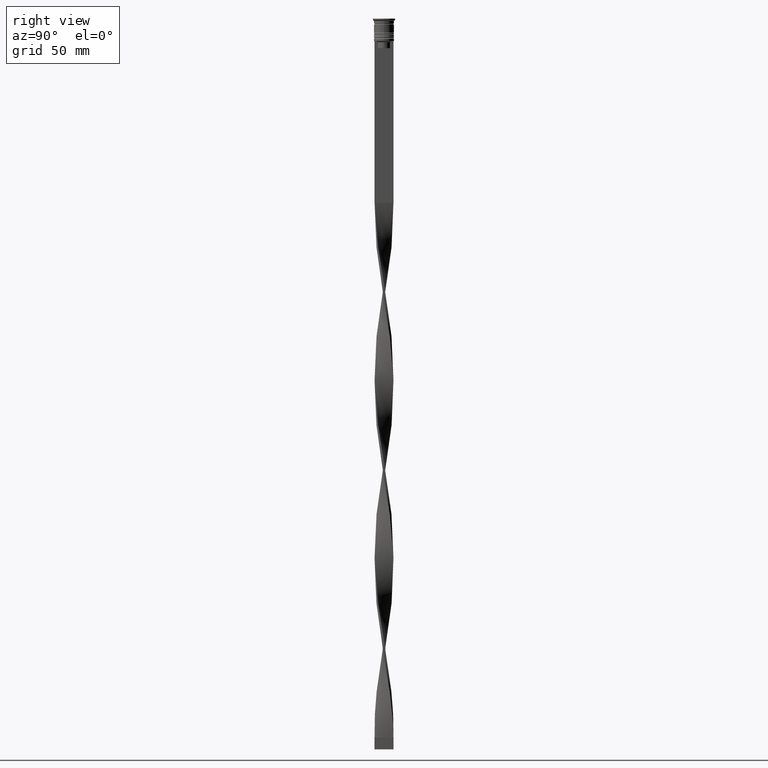
[diagram: clean part render]
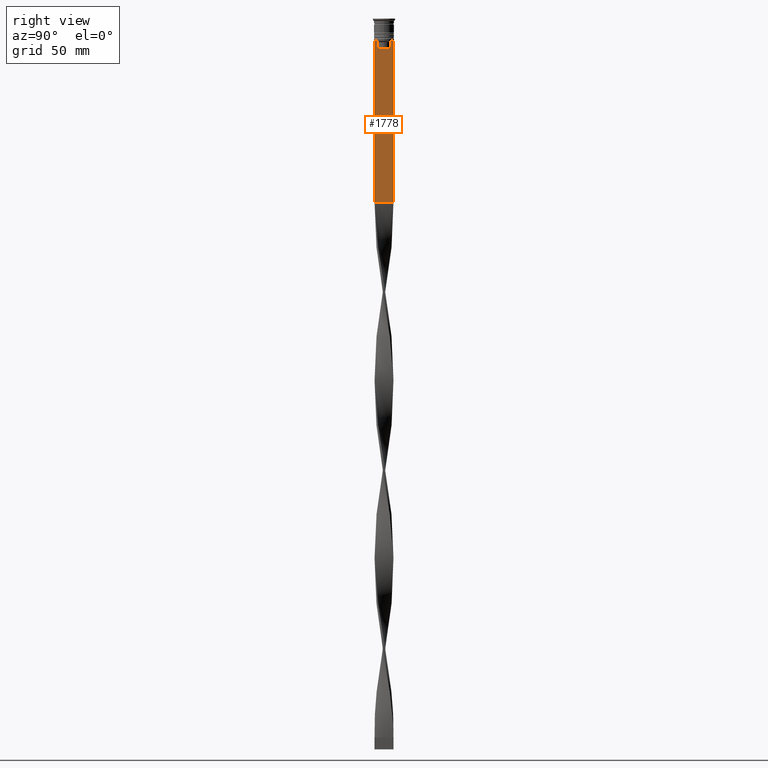
[diagram: same view with one face highlighted and labeled with its STEP entity id]
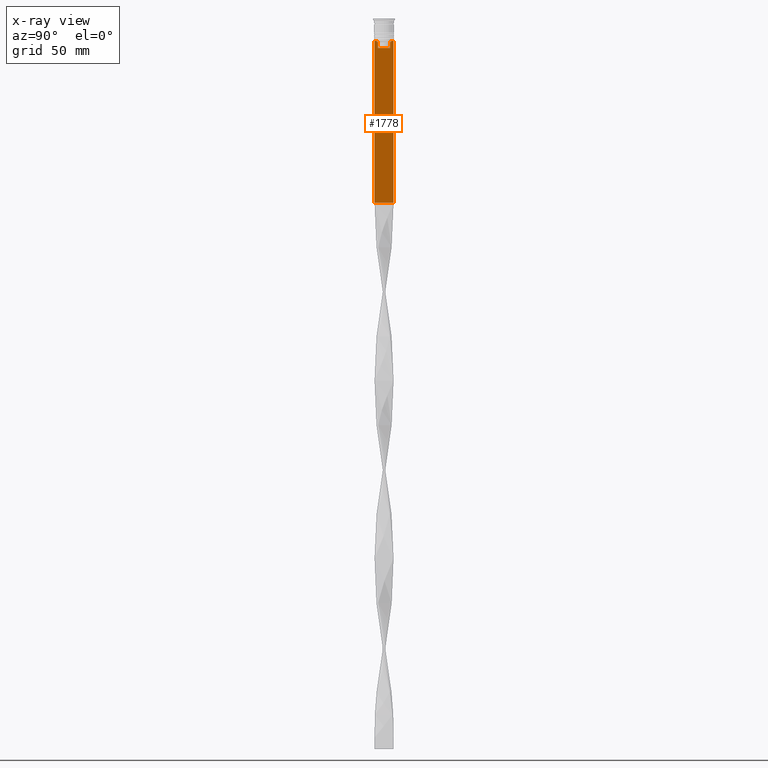
[diagram: x-ray of the same camera — body ghosted, the highlighted face saturated]
A machine part, right view. The second image highlights one B-rep face of the part: STEP entity #1778.
The next image is the same camera in x-ray: the body ghosted, the highlighted face saturated — about 0% of this face is hidden behind the body in this view.
In plain terms, the highlighted planar face has unit normal (-1, 0, 0).
Its self-contained STEP definition (entity closure, byte-faithful):
#62 = DIRECTION ( 'NONE',  ( 0.000000000000000000, 1.000000000000000000, 0.000000000000000000 ) ) ;
#70 = VECTOR ( 'NONE', #226, 1000.000000000000000 ) ;
#147 = LINE ( 'NONE', #999, #389 ) ;
#221 = EDGE_CURVE ( 'NONE', #3494, #2777, #305, .T. ) ;
#226 = DIRECTION ( 'NONE',  ( 0.000000000000000000, 0.000000000000000000, -1.000000000000000000 ) ) ;
#305 = LINE ( 'NONE', #2457, #70 ) ;
#376 = CARTESIAN_POINT ( 'NONE',  ( 0.5000000000000000000, -2.771864055700302032, -9.833582414266679450 ) ) ;
#380 = LINE ( 'NONE', #1373, #3944 ) ;
#389 = VECTOR ( 'NONE', #1311, 1000.000000000000000 ) ;
#429 = LINE ( 'NONE', #1959, #3219 ) ;
#440 = CARTESIAN_POINT ( 'NONE',  ( 0.5000000000000000000, 2.941047749529105193, -9.666873766989334982 ) ) ;
#597 = CARTESIAN_POINT ( 'NONE',  ( 0.5000000000000000000, -4.000000000000000000, -1.437742251701450202 ) ) ;
#608 = DIRECTION ( 'NONE',  ( -0.000000000000000000, -0.000000000000000000, 1.000000000000000000 ) ) ;
#618 = DIRECTION ( 'NONE',  ( 0.000000000000000000, 0.000000000000000000, 1.000000000000000000 ) ) ;
#936 = B_SPLINE_CURVE_WITH_KNOTS ( 'NONE', 3,
 ( #3139, #376, #1056, #2285 ),
 .UNSPECIFIED., .F., .F.,
 ( 4, 4 ),
 ( 0.01295151922336847811, 0.01367164596165162602 ),
 .UNSPECIFIED. ) ;
#999 = CARTESIAN_POINT ( 'NONE',  ( 0.5000000000000000000, 4.000000000000000000, -1.437742251701450202 ) ) ;
#1056 = CARTESIAN_POINT ( 'NONE',  ( 0.5000000000000000000, -2.941045828809988105, -9.666875663357579640 ) ) ;
#1072 = VERTEX_POINT ( 'NONE', #1665 ) ;
#1085 = CARTESIAN_POINT ( 'NONE',  ( 0.5000000000000000000, 2.771866350855961780, -9.833580160334840059 ) ) ;
#1117 = EDGE_CURVE ( 'NONE', #3087, #1072, #429, .T. ) ;
#1142 = B_SPLINE_CURVE_WITH_KNOTS ( 'NONE', 3,
 ( #1969, #440, #1085, #2913 ),
 .UNSPECIFIED., .F., .F.,
 ( 4, 4 ),
 ( 0.005378271293598279809, 0.006090816219555997280 ),
 .UNSPECIFIED. ) ;
#1149 = CARTESIAN_POINT ( 'NONE',  ( 0.5000000000000000000, 3.110064308016796897, -9.500000000000000000 ) ) ;
#1161 = ORIENTED_EDGE ( 'NONE', *, *, #2852, .F. ) ;
#1291 = EDGE_CURVE ( 'NONE', #1072, #3259, #3956, .T. ) ;
#1311 = DIRECTION ( 'NONE',  ( 0.000000000000000000, 0.000000000000000000, -1.000000000000000000 ) ) ;
#1373 = CARTESIAN_POINT ( 'NONE',  ( 0.5000000000000000000, 2.649999999999995914, -12.50000000000000000 ) ) ;
#1466 = CARTESIAN_POINT ( 'NONE',  ( 0.5000000000000000000, 4.000000000000000000, -9.500000000000000000 ) ) ;
#1476 = ORIENTED_EDGE ( 'NONE', *, *, #1117, .T. ) ;
#1565 = ORIENTED_EDGE ( 'NONE', *, *, #1998, .T. ) ;
#1612 = AXIS2_PLACEMENT_3D ( 'NONE', #3978, #1873, #618 ) ;
#1662 = EDGE_CURVE ( 'NONE', #2777, #2893, #380, .T. ) ;
#1665 = CARTESIAN_POINT ( 'NONE',  ( 0.5000000000000000000, -4.000000000000000000, -9.500000000000000000 ) ) ;
#1695 = EDGE_LOOP ( 'NONE', ( #2293, #2758, #3868, #2237, #2281, #1900, #1476, #2361, #1565, #1161 ) ) ;
#1778 = ADVANCED_FACE ( 'NONE', ( #2135 ), #3417, .F. ) ;
#1798 = CARTESIAN_POINT ( 'NONE',  ( 0.5000000000000000000, -2.602402735934616906, 0.000000000000000000 ) ) ;
#1840 = VERTEX_POINT ( 'NONE', #3582 ) ;
#1848 = CARTESIAN_POINT ( 'NONE',  ( 0.5000000000000000000, -2.602402735934616906, -12.50000000000000000 ) ) ;
#1866 = VECTOR ( 'NONE', #2717, 1000.000000000000000 ) ;
#1873 = DIRECTION ( 'NONE',  ( -1.000000000000000000, 0.000000000000000000, 0.000000000000000000 ) ) ;
#1900 = ORIENTED_EDGE ( 'NONE', *, *, #3095, .T. ) ;
#1946 = LINE ( 'NONE', #2843, #3428 ) ;
#1955 = CARTESIAN_POINT ( 'NONE',  ( 0.5000000000000000000, 2.602402735934616906, -10.00000000000000178 ) ) ;
#1959 = CARTESIAN_POINT ( 'NONE',  ( 0.5000000000000000000, -4.000000000000000000, -9.500000000000000000 ) ) ;
#1969 = CARTESIAN_POINT ( 'NONE',  ( 0.5000000000000000000, 3.110064308016796897, -9.500000000000000000 ) ) ;
#1998 = EDGE_CURVE ( 'NONE', #3259, #1840, #3064, .T. ) ;
#2135 = FACE_OUTER_BOUND ( 'NONE', #1695, .T. ) ;
#2237 = ORIENTED_EDGE ( 'NONE', *, *, #1662, .T. ) ;
#2252 = EDGE_CURVE ( 'NONE', #2318, #3494, #1142, .T. ) ;
#2281 = ORIENTED_EDGE ( 'NONE', *, *, #3445, .T. ) ;
#2285 = CARTESIAN_POINT ( 'NONE',  ( 0.5000000000000000000, -3.110064308016796897, -9.500000000000000000 ) ) ;
#2293 = ORIENTED_EDGE ( 'NONE', *, *, #2808, .T. ) ;
#2301 = CARTESIAN_POINT ( 'NONE',  ( 0.5000000000000000000, -4.000000000000000000, -78.00000000000000000 ) ) ;
#2318 = VERTEX_POINT ( 'NONE', #1149 ) ;
#2361 = ORIENTED_EDGE ( 'NONE', *, *, #1291, .T. ) ;
#2442 = CARTESIAN_POINT ( 'NONE',  ( 0.5000000000000000000, -4.000000000000000000, -78.00000000000000000 ) ) ;
#2457 = CARTESIAN_POINT ( 'NONE',  ( 0.5000000000000000000, 2.602402735934616906, 0.000000000000000000 ) ) ;
#2717 = DIRECTION ( 'NONE',  ( 0.000000000000000000, 0.000000000000000000, -1.000000000000000000 ) ) ;
#2758 = ORIENTED_EDGE ( 'NONE', *, *, #2252, .T. ) ;
#2777 = VERTEX_POINT ( 'NONE', #2887 ) ;
#2808 = EDGE_CURVE ( 'NONE', #3789, #2318, #1946, .T. ) ;
#2840 = VECTOR ( 'NONE', #62, 1000.000000000000000 ) ;
#2842 = DIRECTION ( 'NONE',  ( 0.000000000000000000, -1.000000000000000000, 0.000000000000000000 ) ) ;
#2843 = CARTESIAN_POINT ( 'NONE',  ( 0.5000000000000000000, -4.000000000000000000, -9.500000000000000000 ) ) ;
#2849 = VECTOR ( 'NONE', #608, 1000.000000000000000 ) ;
#2852 = EDGE_CURVE ( 'NONE', #3789, #1840, #147, .T. ) ;
#2887 = CARTESIAN_POINT ( 'NONE',  ( 0.5000000000000000000, 2.602402735934616906, -12.50000000000000000 ) ) ;
#2893 = VERTEX_POINT ( 'NONE', #1848 ) ;
#2913 = CARTESIAN_POINT ( 'NONE',  ( 0.5000000000000000000, 2.602402735934616906, -10.00000000000000178 ) ) ;
#2928 = DIRECTION ( 'NONE',  ( 0.000000000000000000, -1.000000000000000000, 0.000000000000000000 ) ) ;
#3064 = LINE ( 'NONE', #2442, #2840 ) ;
#3087 = VERTEX_POINT ( 'NONE', #3832 ) ;
#3095 = EDGE_CURVE ( 'NONE', #3410, #3087, #936, .T. ) ;
#3139 = CARTESIAN_POINT ( 'NONE',  ( 0.5000000000000000000, -2.602402735934616906, -10.00000000000000178 ) ) ;
#3190 = DIRECTION ( 'NONE',  ( 0.000000000000000000, -1.000000000000000000, 0.000000000000000000 ) ) ;
#3219 = VECTOR ( 'NONE', #3190, 1000.000000000000000 ) ;
#3259 = VERTEX_POINT ( 'NONE', #2301 ) ;
#3390 = LINE ( 'NONE', #1798, #2849 ) ;
#3410 = VERTEX_POINT ( 'NONE', #3686 ) ;
#3417 = PLANE ( 'NONE',  #1612 ) ;
#3428 = VECTOR ( 'NONE', #2928, 1000.000000000000000 ) ;
#3445 = EDGE_CURVE ( 'NONE', #2893, #3410, #3390, .T. ) ;
#3494 = VERTEX_POINT ( 'NONE', #1955 ) ;
#3582 = CARTESIAN_POINT ( 'NONE',  ( 0.5000000000000000000, 4.000000000000000000, -78.00000000000000000 ) ) ;
#3686 = CARTESIAN_POINT ( 'NONE',  ( 0.5000000000000000000, -2.602402735934616906, -10.00000000000000178 ) ) ;
#3789 = VERTEX_POINT ( 'NONE', #1466 ) ;
#3832 = CARTESIAN_POINT ( 'NONE',  ( 0.5000000000000000000, -3.110064308016796897, -9.500000000000000000 ) ) ;
#3868 = ORIENTED_EDGE ( 'NONE', *, *, #221, .T. ) ;
#3944 = VECTOR ( 'NONE', #2842, 1000.000000000000000 ) ;
#3956 = LINE ( 'NONE', #597, #1866 ) ;
#3978 = CARTESIAN_POINT ( 'NONE',  ( 0.5000000000000000000, -4.000000000000000000, -1.437742251701450202 ) ) ;